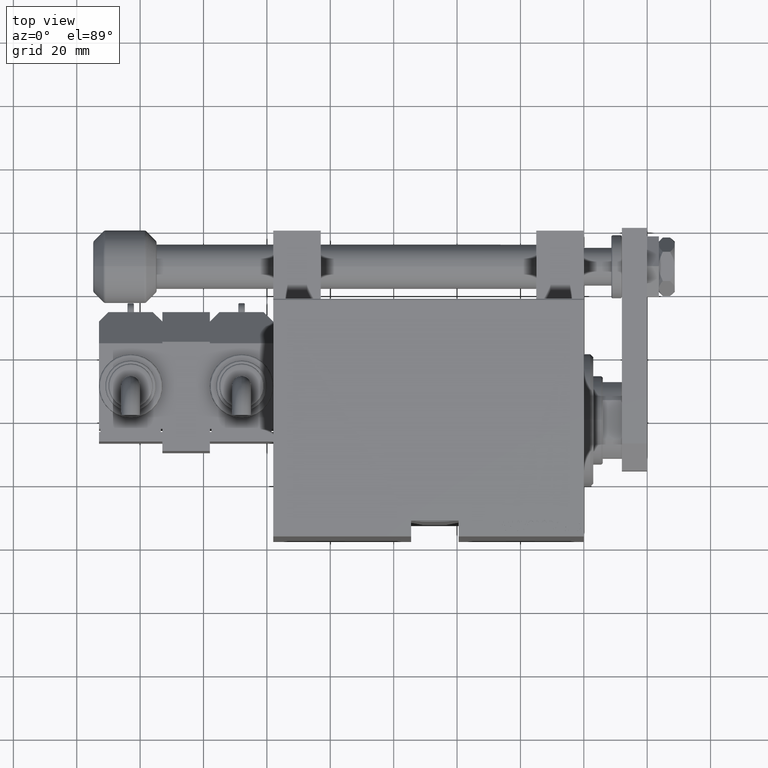
[diagram: clean part render]
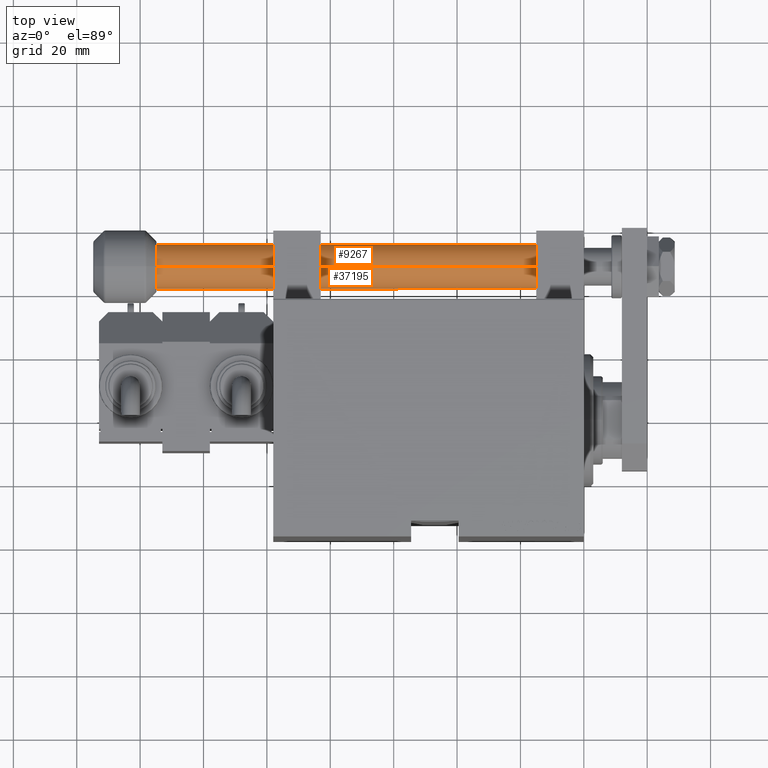
[diagram: same view with one multi-face feature highlighted, each face labeled with its STEP entity id]
A machine part, top view. The highlighted faces form ONE feature: a constant-radius fillet chain: 2 tangent blend faces with common blend radius 7 mm. The faces share edges in the B-rep.
Their STEP definitions:
[1] entity #9267 (Cylinder):
#269 = VERTEX_POINT ( 'NONE', #4582 ) ;
#637 = CARTESIAN_POINT ( 'NONE',  ( -0.4999999999999992784, 6.982120021884415273, 152.0000000000000000 ) ) ;
#2424 = CARTESIAN_POINT ( 'NONE',  ( -7.000000000000000000, 0.000000000000000000, 153.0000000000000000 ) ) ;
#2686 = DIRECTION ( 'NONE',  ( 0.000000000000000000, 0.000000000000000000, -1.000000000000000000 ) ) ;
#4582 = CARTESIAN_POINT ( 'NONE',  ( 7.000000000000000000, 8.572527594031473190E-16, 2.000000000000029310 ) ) ;
#7676 = CARTESIAN_POINT ( 'NONE',  ( 7.000000000000000000, 8.572527594031473190E-16, 153.0000000000000000 ) ) ;
#7790 = CARTESIAN_POINT ( 'NONE',  ( 0.000000000000000000, 0.000000000000000000, 153.0000000000000000 ) ) ;
#8168 = CIRCLE ( 'NONE', #33254, 7.000000000000000000 ) ;
#9267 = ADVANCED_FACE ( 'NONE', ( #45071 ), #41148, .T. ) ;
#11308 = EDGE_LOOP ( 'NONE', ( #18408, #24058, #12279, #27580, #42880, #40475 ) ) ;
#11785 = AXIS2_PLACEMENT_3D ( 'NONE', #48227, #25913, #48461 ) ;
#12279 = ORIENTED_EDGE ( 'NONE', *, *, #26083, .T. ) ;
#12966 = VERTEX_POINT ( 'NONE', #14413 ) ;
#14010 = VERTEX_POINT ( 'NONE', #27714 ) ;
#14413 = CARTESIAN_POINT ( 'NONE',  ( 0.5000000000000041078, 6.982120021884470340, 151.9999999999999432 ) ) ;
#15202 = VECTOR ( 'NONE', #41520, 1000.000000000000000 ) ;
#15264 = CARTESIAN_POINT ( 'NONE',  ( -7.000000000000000000, 0.000000000000000000, 2.000000000000029310 ) ) ;
#15773 = EDGE_CURVE ( 'NONE', #33042, #35527, #17881, .T. ) ;
#15802 = EDGE_CURVE ( 'NONE', #12966, #14010, #33626, .T. ) ;
#17725 = DIRECTION ( 'NONE',  ( 1.000000000000000000, 0.000000000000000000, 0.000000000000000000 ) ) ;
#17881 = LINE ( 'NONE', #2424, #20297 ) ;
#18408 = ORIENTED_EDGE ( 'NONE', *, *, #15802, .T. ) ;
#20297 = VECTOR ( 'NONE', #40436, 1000.000000000000000 ) ;
#20534 = CARTESIAN_POINT ( 'NONE',  ( -7.000000000000000000, 0.000000000000000000, 151.9999999999999432 ) ) ;
#22765 = DIRECTION ( 'NONE',  ( -0.000000000000000000, -0.000000000000000000, -1.000000000000000000 ) ) ;
#23778 = AXIS2_PLACEMENT_3D ( 'NONE', #25571, #36360, #17725 ) ;
#24058 = ORIENTED_EDGE ( 'NONE', *, *, #41486, .T. ) ;
#24771 = CARTESIAN_POINT ( 'NONE',  ( 0.000000000000000000, 0.000000000000000000, 151.9999999999999432 ) ) ;
#25571 = CARTESIAN_POINT ( 'NONE',  ( 0.000000000000000000, 0.000000000000000000, 2.000000000000029310 ) ) ;
#25913 = DIRECTION ( 'NONE',  ( 0.000000000000000000, 0.000000000000000000, -1.000000000000000000 ) ) ;
#26083 = EDGE_CURVE ( 'NONE', #269, #35527, #44138, .T. ) ;
#26562 = AXIS2_PLACEMENT_3D ( 'NONE', #24771, #35798, #31873 ) ;
#26572 = LINE ( 'NONE', #7676, #15202 ) ;
#27580 = ORIENTED_EDGE ( 'NONE', *, *, #15773, .F. ) ;
#27714 = CARTESIAN_POINT ( 'NONE',  ( 7.000000000000000000, 8.572527594031473190E-16, 151.9999999999999432 ) ) ;
#31873 = DIRECTION ( 'NONE',  ( 1.000000000000000000, -1.776356839400250465E-15, 0.000000000000000000 ) ) ;
#33042 = VERTEX_POINT ( 'NONE', #20534 ) ;
#33083 = DIRECTION ( 'NONE',  ( -1.000000000000000000, 0.000000000000000000, 0.000000000000000000 ) ) ;
#33199 = EDGE_CURVE ( 'NONE', #33042, #47203, #45457, .T. ) ;
#33254 = AXIS2_PLACEMENT_3D ( 'NONE', #40456, #2686, #39985 ) ;
#33626 = CIRCLE ( 'NONE', #26562, 7.000000000000000000 ) ;
#35527 = VERTEX_POINT ( 'NONE', #15264 ) ;
#35783 = AXIS2_PLACEMENT_3D ( 'NONE', #7790, #22765, #33083 ) ;
#35798 = DIRECTION ( 'NONE',  ( 0.000000000000000000, 0.000000000000000000, -1.000000000000000000 ) ) ;
#36360 = DIRECTION ( 'NONE',  ( -0.000000000000000000, -0.000000000000000000, 1.000000000000000000 ) ) ;
#39985 = DIRECTION ( 'NONE',  ( 1.000000000000000000, 2.842170943040400743E-14, 0.000000000000000000 ) ) ;
#40436 = DIRECTION ( 'NONE',  ( -0.000000000000000000, -0.000000000000000000, -1.000000000000000000 ) ) ;
#40456 = CARTESIAN_POINT ( 'NONE',  ( 0.000000000000000000, 0.000000000000000000, 151.9999999999999432 ) ) ;
#40475 = ORIENTED_EDGE ( 'NONE', *, *, #41932, .T. ) ;
#41148 = CYLINDRICAL_SURFACE ( 'NONE', #35783, 7.000000000000000000 ) ;
#41486 = EDGE_CURVE ( 'NONE', #14010, #269, #26572, .T. ) ;
#41520 = DIRECTION ( 'NONE',  ( -0.000000000000000000, -0.000000000000000000, -1.000000000000000000 ) ) ;
#41932 = EDGE_CURVE ( 'NONE', #47203, #12966, #8168, .T. ) ;
#42880 = ORIENTED_EDGE ( 'NONE', *, *, #33199, .T. ) ;
#44138 = CIRCLE ( 'NONE', #23778, 7.000000000000000000 ) ;
#45071 = FACE_OUTER_BOUND ( 'NONE', #11308, .T. ) ;
#45457 = CIRCLE ( 'NONE', #11785, 7.000000000000000000 ) ;
#47203 = VERTEX_POINT ( 'NONE', #637 ) ;
#48227 = CARTESIAN_POINT ( 'NONE',  ( 0.000000000000000000, 0.000000000000000000, 151.9999999999999432 ) ) ;
#48461 = DIRECTION ( 'NONE',  ( 1.000000000000000000, -1.776356839400250465E-15, 0.000000000000000000 ) ) ;
[2] entity #37195 (Cylinder):
#269 = VERTEX_POINT ( 'NONE', #4582 ) ;
#2338 = DIRECTION ( 'NONE',  ( 1.000000000000000000, 0.000000000000000000, 0.000000000000000000 ) ) ;
#2424 = CARTESIAN_POINT ( 'NONE',  ( -7.000000000000000000, 0.000000000000000000, 153.0000000000000000 ) ) ;
#3067 = CIRCLE ( 'NONE', #10148, 7.000000000000000000 ) ;
#3538 = EDGE_CURVE ( 'NONE', #13219, #9399, #40305, .T. ) ;
#4582 = CARTESIAN_POINT ( 'NONE',  ( 7.000000000000000000, 8.572527594031473190E-16, 2.000000000000029310 ) ) ;
#5498 = DIRECTION ( 'NONE',  ( 1.000000000000000000, 0.000000000000000000, 0.000000000000000000 ) ) ;
#6064 = ORIENTED_EDGE ( 'NONE', *, *, #3538, .T. ) ;
#7184 = CARTESIAN_POINT ( 'NONE',  ( 0.5000000000000001110, -6.982120021884415273, 152.0000000000000000 ) ) ;
#7676 = CARTESIAN_POINT ( 'NONE',  ( 7.000000000000000000, 8.572527594031473190E-16, 153.0000000000000000 ) ) ;
#7838 = CARTESIAN_POINT ( 'NONE',  ( 0.000000000000000000, 0.000000000000000000, 151.9999999999999432 ) ) ;
#8960 = AXIS2_PLACEMENT_3D ( 'NONE', #39873, #46986, #2338 ) ;
#9399 = VERTEX_POINT ( 'NONE', #28876 ) ;
#10148 = AXIS2_PLACEMENT_3D ( 'NONE', #7838, #45119, #48331 ) ;
#13219 = VERTEX_POINT ( 'NONE', #7184 ) ;
#14010 = VERTEX_POINT ( 'NONE', #27714 ) ;
#14423 = CARTESIAN_POINT ( 'NONE',  ( 0.000000000000000000, 0.000000000000000000, 2.000000000000029310 ) ) ;
#15202 = VECTOR ( 'NONE', #41520, 1000.000000000000000 ) ;
#15264 = CARTESIAN_POINT ( 'NONE',  ( -7.000000000000000000, 0.000000000000000000, 2.000000000000029310 ) ) ;
#15431 = EDGE_CURVE ( 'NONE', #9399, #33042, #3067, .T. ) ;
#15773 = EDGE_CURVE ( 'NONE', #33042, #35527, #17881, .T. ) ;
#17881 = LINE ( 'NONE', #2424, #20297 ) ;
#19272 = DIRECTION ( 'NONE',  ( -0.000000000000000000, -0.000000000000000000, -1.000000000000000000 ) ) ;
#19754 = CARTESIAN_POINT ( 'NONE',  ( 0.000000000000000000, 0.000000000000000000, 153.0000000000000000 ) ) ;
#20297 = VECTOR ( 'NONE', #40436, 1000.000000000000000 ) ;
#20534 = CARTESIAN_POINT ( 'NONE',  ( -7.000000000000000000, 0.000000000000000000, 151.9999999999999432 ) ) ;
#21049 = EDGE_CURVE ( 'NONE', #35527, #269, #44649, .T. ) ;
#21321 = DIRECTION ( 'NONE',  ( -0.000000000000000000, -0.000000000000000000, 1.000000000000000000 ) ) ;
#22084 = ORIENTED_EDGE ( 'NONE', *, *, #34541, .T. ) ;
#22129 = AXIS2_PLACEMENT_3D ( 'NONE', #19754, #19272, #34478 ) ;
#22335 = ORIENTED_EDGE ( 'NONE', *, *, #21049, .T. ) ;
#22822 = ORIENTED_EDGE ( 'NONE', *, *, #15431, .T. ) ;
#24646 = DIRECTION ( 'NONE',  ( 0.000000000000000000, 0.000000000000000000, -1.000000000000000000 ) ) ;
#26572 = LINE ( 'NONE', #7676, #15202 ) ;
#26638 = EDGE_LOOP ( 'NONE', ( #46641, #22084, #6064, #22822, #37677, #22335 ) ) ;
#27714 = CARTESIAN_POINT ( 'NONE',  ( 7.000000000000000000, 8.572527594031473190E-16, 151.9999999999999432 ) ) ;
#28876 = CARTESIAN_POINT ( 'NONE',  ( -0.4999999999999975020, -6.982120021884415273, 152.0000000000000000 ) ) ;
#29139 = CIRCLE ( 'NONE', #34583, 7.000000000000000000 ) ;
#30076 = CYLINDRICAL_SURFACE ( 'NONE', #22129, 7.000000000000000000 ) ;
#31990 = CARTESIAN_POINT ( 'NONE',  ( 0.000000000000000000, 0.000000000000000000, 151.9999999999999432 ) ) ;
#33042 = VERTEX_POINT ( 'NONE', #20534 ) ;
#33751 = FACE_OUTER_BOUND ( 'NONE', #26638, .T. ) ;
#34478 = DIRECTION ( 'NONE',  ( -1.000000000000000000, 0.000000000000000000, 0.000000000000000000 ) ) ;
#34541 = EDGE_CURVE ( 'NONE', #14010, #13219, #29139, .T. ) ;
#34583 = AXIS2_PLACEMENT_3D ( 'NONE', #31990, #24646, #5498 ) ;
#35527 = VERTEX_POINT ( 'NONE', #15264 ) ;
#36834 = AXIS2_PLACEMENT_3D ( 'NONE', #14423, #21321, #47073 ) ;
#37195 = ADVANCED_FACE ( 'NONE', ( #33751 ), #30076, .T. ) ;
#37677 = ORIENTED_EDGE ( 'NONE', *, *, #15773, .T. ) ;
#39873 = CARTESIAN_POINT ( 'NONE',  ( 0.000000000000000000, 0.000000000000000000, 151.9999999999999432 ) ) ;
#40305 = CIRCLE ( 'NONE', #8960, 7.000000000000000000 ) ;
#40436 = DIRECTION ( 'NONE',  ( -0.000000000000000000, -0.000000000000000000, -1.000000000000000000 ) ) ;
#41486 = EDGE_CURVE ( 'NONE', #14010, #269, #26572, .T. ) ;
#41520 = DIRECTION ( 'NONE',  ( -0.000000000000000000, -0.000000000000000000, -1.000000000000000000 ) ) ;
#44649 = CIRCLE ( 'NONE', #36834, 7.000000000000000000 ) ;
#45119 = DIRECTION ( 'NONE',  ( 0.000000000000000000, 0.000000000000000000, -1.000000000000000000 ) ) ;
#46641 = ORIENTED_EDGE ( 'NONE', *, *, #41486, .F. ) ;
#46986 = DIRECTION ( 'NONE',  ( 0.000000000000000000, 0.000000000000000000, -1.000000000000000000 ) ) ;
#47073 = DIRECTION ( 'NONE',  ( 1.000000000000000000, 0.000000000000000000, 0.000000000000000000 ) ) ;
#48331 = DIRECTION ( 'NONE',  ( 1.000000000000000000, 0.000000000000000000, 0.000000000000000000 ) ) ;